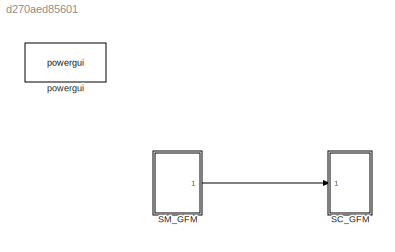
MODEL slx_d270aed85601
KIND model
CONFIG AbsTol = auto
CONFIG EnableMultiTasking = off
CONFIG FixedStep = 0.0001
CONFIG MaxStep = auto
CONFIG MinStep = auto
CONFIG RelTol = 1e-3
CONFIG SampleTimeConstraint = Unconstrained
CONFIG SolverName = ode8
CONFIG StartTime = 0.0
CONFIG StopTime = 5
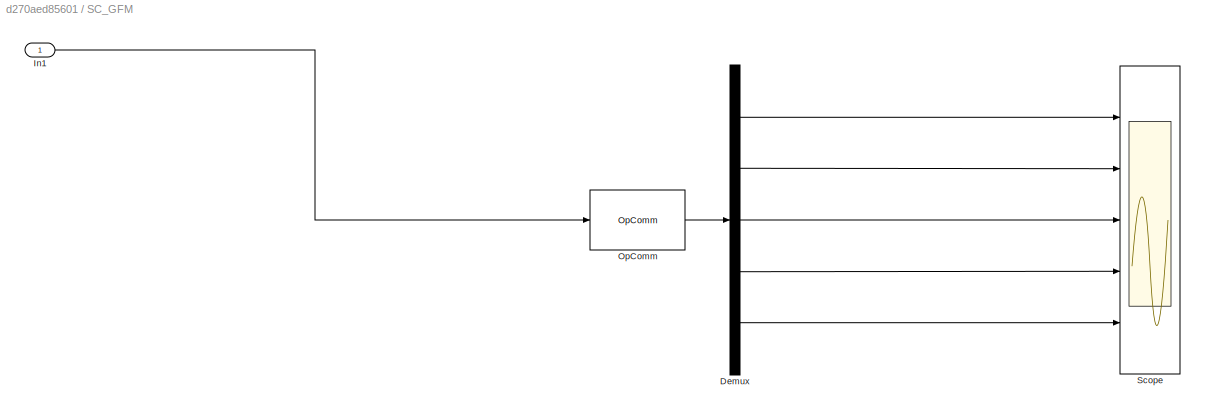
BLOCK [SubSystem] SC_GFM
  Ports = [1]
  RequestExecContextInheritance = off
BLOCK [Demux] SC_GFM/Demux
  Outputs = 5
  Ports = [1, 5]
BLOCK [Inport] SC_GFM/In1
BLOCK [Reference] SC_GFM/OpComm  REF=rtlab/OpComm
  Ports = [1, 1]
  SourceBlock = rtlab/OpComm
  SourceProductName = RT-LAB
  SourceType = RT-LAB OpComm
BLOCK [Scope] SC_GFM/Scope
  Floating = off
  NumInputPorts = 5
  Ports = [5]
  ScopeSpecificationString = Simulink.scopes.TimeScopeBlockCfg('CurrentConfiguration', extmgr.ConfigurationSet(extmgr.Configuration('Core','General UI',true),extmgr.Configuration('Core','Source UI',true),extmgr.Configuration('Sources','WiredSimulink',true,'DataLoggingVariableName','ScopeData2'),extmgr.Configuration('Visuals','Time Domain',true,'SerializedDisplays',{struct('MinYLimReal','-828.46441','MaxYLimReal','765.11252','...<+1471ch>
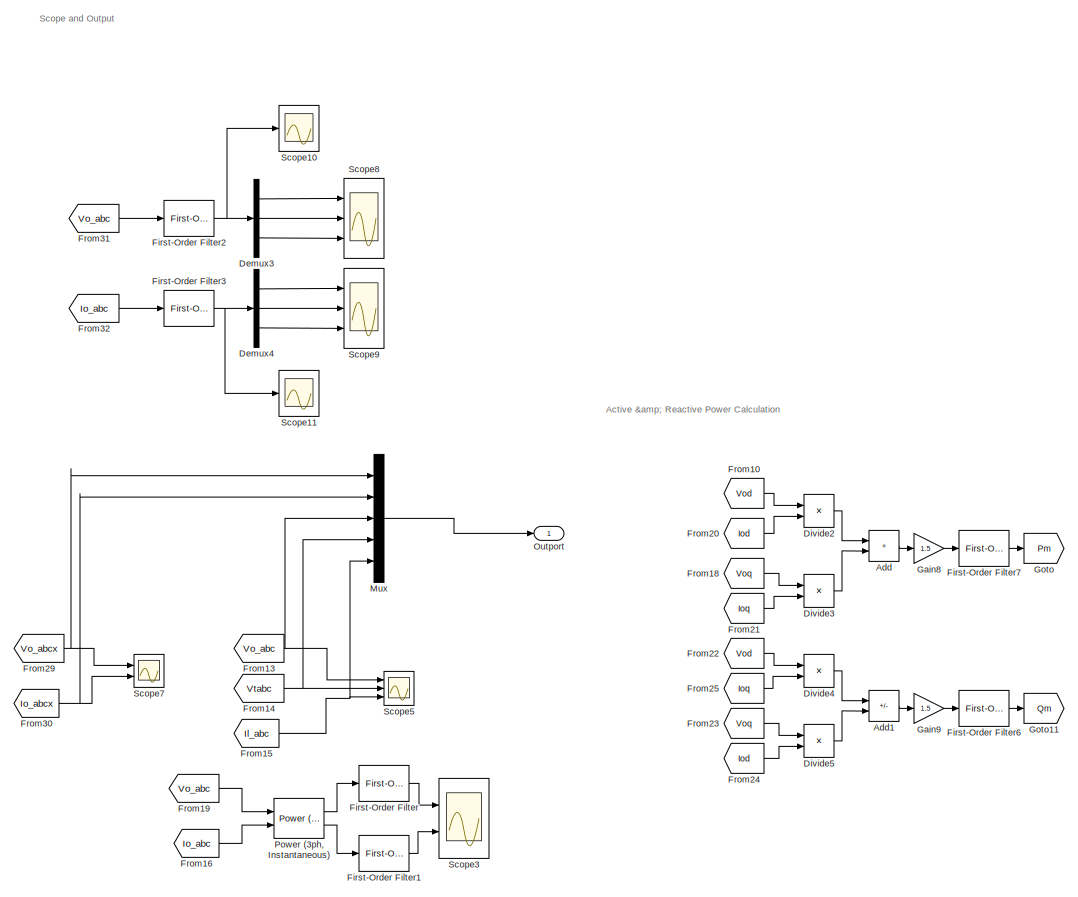
[diagram: SM_GFM - part 1/6, top right region]
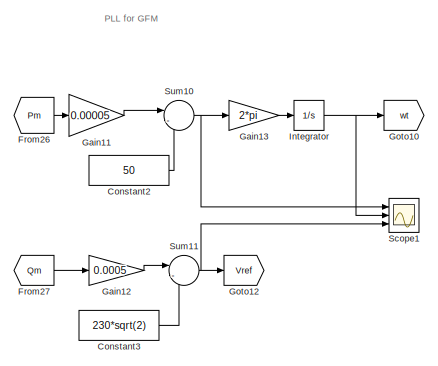
[diagram: SM_GFM - part 2/6, top left region]
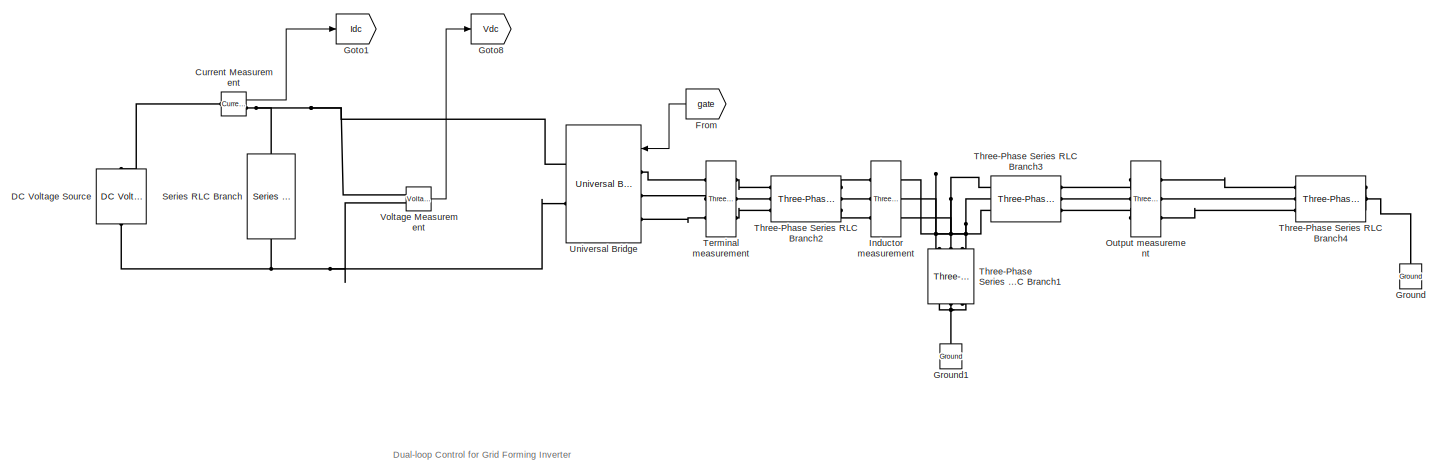
[diagram: SM_GFM - part 3/6, middle left region]
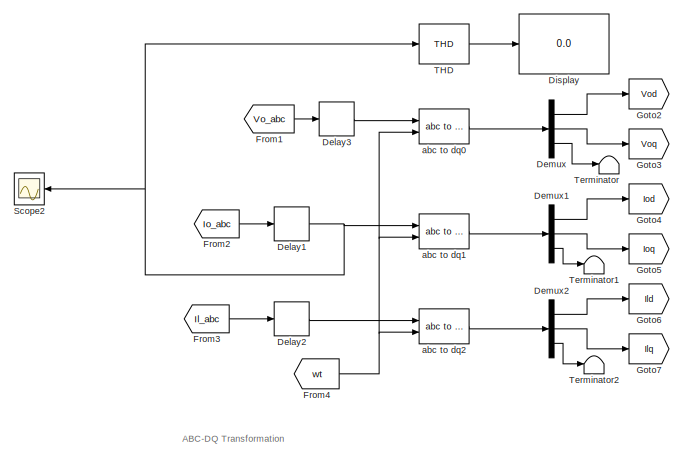
[diagram: SM_GFM - part 4/6, bottom right region]
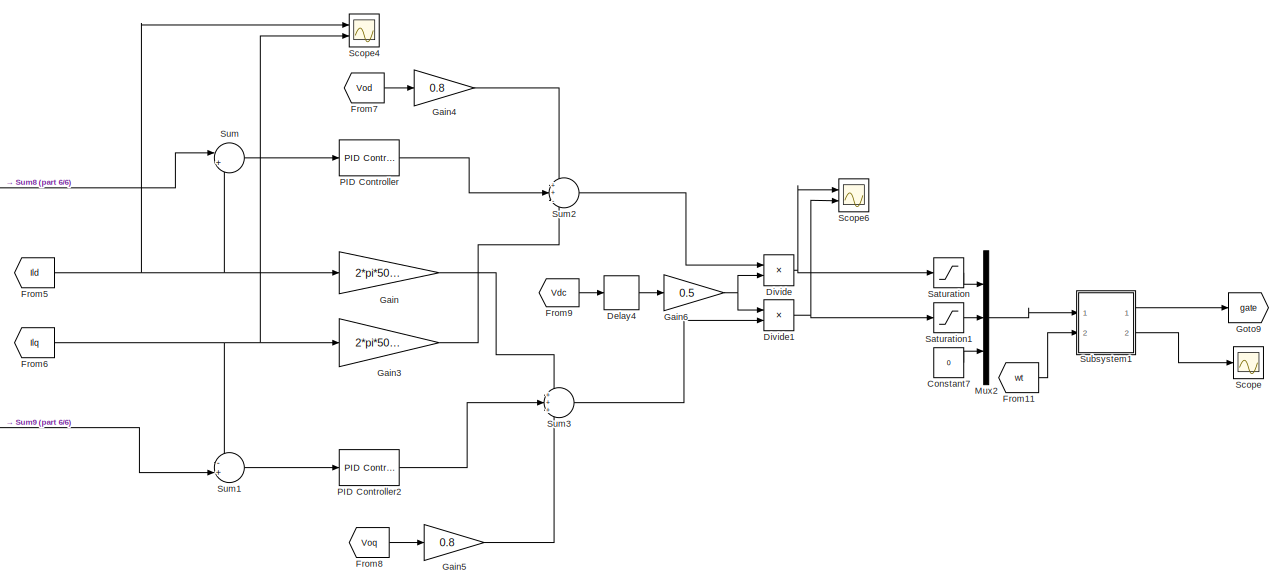
[diagram: SM_GFM - part 5/6, bottom center region]
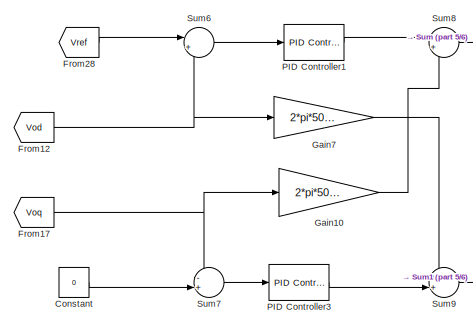
[diagram: SM_GFM - part 6/6, bottom left region]
BLOCK [SubSystem] SM_GFM
  Ports = [0, 1]
  RequestExecContextInheritance = off
BLOCK [Sum] SM_GFM/Add
  IconShape = rectangular
  Ports = [2, 1]
BLOCK [Sum] SM_GFM/Add1
  IconShape = rectangular
  Inputs = +-
  Ports = [2, 1]
BLOCK [Constant] SM_GFM/Constant
  Value = 0
BLOCK [Constant] SM_GFM/Constant2
  Value = 50
BLOCK [Constant] SM_GFM/Constant3
  Value = 230*sqrt(2)
BLOCK [Constant] SM_GFM/Constant7
  Value = 0
BLOCK [Reference] SM_GFM/Current Measurement  REF=spsCurrentMeasurementLib/Current Measurement
  Ports = [0, 1, 0, 0, 0, 1, 1]
  SourceBlock = spsCurrentMeasurementLib/Current Measurement
  SourceProductBaseCode = PS
  SourceType = Current Measurement
  UserDataPersistent = on
BLOCK [Reference] SM_GFM/DC Voltage Source  REF=spsDCVoltageSourceLib/DC Voltage Source
  NameLocation = right
  Ports = [0, 0, 0, 0, 0, 1, 1]
  SourceBlock = spsDCVoltageSourceLib/DC Voltage Source
  SourceProductBaseCode = PS
  SourceType = DC Voltage Source
BLOCK [Delay] SM_GFM/Delay1
  DelayLength = 1
  InputPortMap = u0
  Ports = [1, 1]
BLOCK [Delay] SM_GFM/Delay2
  DelayLength = 1
  InputPortMap = u0
  Ports = [1, 1]
BLOCK [Delay] SM_GFM/Delay3
  DelayLength = 1
  InputPortMap = u0
  Ports = [1, 1]
BLOCK [Delay] SM_GFM/Delay4
  DelayLength = 1
  InputPortMap = u0
  Ports = [1, 1]
BLOCK [Demux] SM_GFM/Demux
  Outputs = 3
  Ports = [1, 3]
BLOCK [Demux] SM_GFM/Demux1
  Outputs = 3
  Ports = [1, 3]
BLOCK [Demux] SM_GFM/Demux2
  Outputs = 3
  Ports = [1, 3]
BLOCK [Demux] SM_GFM/Demux3
  Outputs = 3
  Ports = [1, 3]
BLOCK [Demux] SM_GFM/Demux4
  Outputs = 3
  Ports = [1, 3]
BLOCK [Display] SM_GFM/Display
  Decimation = 1
  Ports = [1]
BLOCK [Product] SM_GFM/Divide
  Inputs = */
  Ports = [2, 1]
BLOCK [Product] SM_GFM/Divide1
  Inputs = /*
  Ports = [2, 1]
BLOCK [Product] SM_GFM/Divide2
  Inputs = **
  Ports = [2, 1]
BLOCK [Product] SM_GFM/Divide3
  Inputs = **
  Ports = [2, 1]
BLOCK [Product] SM_GFM/Divide4
  Inputs = **
  Ports = [2, 1]
BLOCK [Product] SM_GFM/Divide5
  Inputs = **
  Ports = [2, 1]
BLOCK [Reference] SM_GFM/First-Order Filter  REF=spsFirstOrderFilterLib/First-Order
Filter
  Ports = [1, 1]
  SourceBlock = spsFirstOrderFilterLib/First-Order\nFilter
  SourceProductBaseCode = PS
  SourceType = First-Order Filter
BLOCK [Reference] SM_GFM/First-Order Filter1  REF=spsFirstOrderFilterLib/First-Order
Filter
  Ports = [1, 1]
  SourceBlock = spsFirstOrderFilterLib/First-Order\nFilter
  SourceProductBaseCode = PS
  SourceType = First-Order Filter
BLOCK [Reference] SM_GFM/First-Order Filter2  REF=spsFirstOrderFilterLib/First-Order
Filter
  Ports = [1, 1]
  SourceBlock = spsFirstOrderFilterLib/First-Order\nFilter
  SourceProductBaseCode = PS
  SourceType = First-Order Filter
BLOCK [Reference] SM_GFM/First-Order Filter3  REF=spsFirstOrderFilterLib/First-Order
Filter
  Ports = [1, 1]
  SourceBlock = spsFirstOrderFilterLib/First-Order\nFilter
  SourceProductBaseCode = PS
  SourceType = First-Order Filter
BLOCK [Reference] SM_GFM/First-Order Filter6  REF=spsFirstOrderFilterLib/First-Order
Filter
  Ports = [1, 1]
  SourceBlock = spsFirstOrderFilterLib/First-Order\nFilter
  SourceProductBaseCode = PS
  SourceType = First-Order Filter
BLOCK [Reference] SM_GFM/First-Order Filter7  REF=spsFirstOrderFilterLib/First-Order
Filter
  Ports = [1, 1]
  SourceBlock = spsFirstOrderFilterLib/First-Order\nFilter
  SourceProductBaseCode = PS
  SourceType = First-Order Filter
BLOCK [From] SM_GFM/From
  GotoTag = gate
BLOCK [From] SM_GFM/From1
  GotoTag = Vo_abc
  TagVisibility = global
BLOCK [From] SM_GFM/From10
  GotoTag = Vod
BLOCK [From] SM_GFM/From11
  GotoTag = wt
BLOCK [From] SM_GFM/From12
  GotoTag = Vod
BLOCK [From] SM_GFM/From13
  GotoTag = Vo_abc
  TagVisibility = global
BLOCK [From] SM_GFM/From14
  GotoTag = Vtabc
  TagVisibility = global
BLOCK [From] SM_GFM/From15
  GotoTag = Il_abc
  TagVisibility = global
BLOCK [From] SM_GFM/From16
  GotoTag = Io_abc
  TagVisibility = global
BLOCK [From] SM_GFM/From17
  GotoTag = Voq
BLOCK [From] SM_GFM/From18
  GotoTag = Voq
BLOCK [From] SM_GFM/From19
  GotoTag = Vo_abc
  TagVisibility = global
BLOCK [From] SM_GFM/From2
  GotoTag = Io_abc
  TagVisibility = global
BLOCK [From] SM_GFM/From20
  GotoTag = Iod
BLOCK [From] SM_GFM/From21
  GotoTag = Ioq
BLOCK [From] SM_GFM/From22
  GotoTag = Vod
BLOCK [From] SM_GFM/From23
  GotoTag = Voq
BLOCK [From] SM_GFM/From24
  GotoTag = Iod
BLOCK [From] SM_GFM/From25
  GotoTag = Ioq
BLOCK [From] SM_GFM/From26
  GotoTag = Pm
BLOCK [From] SM_GFM/From27
  GotoTag = Qm
BLOCK [From] SM_GFM/From28
  GotoTag = Vref
BLOCK [From] SM_GFM/From29
  GotoTag = Vo_abcx
BLOCK [From] SM_GFM/From3
  GotoTag = Il_abc
  TagVisibility = global
BLOCK [From] SM_GFM/From30
  GotoTag = Io_abcx
BLOCK [From] SM_GFM/From31
  GotoTag = Vo_abc
  TagVisibility = global
BLOCK [From] SM_GFM/From32
  GotoTag = Io_abc
  TagVisibility = global
BLOCK [From] SM_GFM/From4
  GotoTag = wt
BLOCK [From] SM_GFM/From5
  GotoTag = Ild
BLOCK [From] SM_GFM/From6
  GotoTag = Ilq
BLOCK [From] SM_GFM/From7
  GotoTag = Vod
BLOCK [From] SM_GFM/From8
  GotoTag = Voq
BLOCK [From] SM_GFM/From9
  GotoTag = Vdc
BLOCK [Gain] SM_GFM/Gain
  Gain = 2*pi*50*1e-3
BLOCK [Gain] SM_GFM/Gain10
  Gain = 2*pi*50*50e-6
BLOCK [Gain] SM_GFM/Gain11
  Gain = 0.00005
BLOCK [Gain] SM_GFM/Gain12
  Gain = 0.0005
BLOCK [Gain] SM_GFM/Gain13
  Gain = 2*pi
BLOCK [Gain] SM_GFM/Gain3
  Gain = 2*pi*50*1e-3
BLOCK [Gain] SM_GFM/Gain4
  Gain = 0.8
BLOCK [Gain] SM_GFM/Gain5
  Gain = 0.8
BLOCK [Gain] SM_GFM/Gain6
  Gain = 0.5
BLOCK [Gain] SM_GFM/Gain7
  Gain = 2*pi*50*50e-6
BLOCK [Gain] SM_GFM/Gain8
  Gain = 1.5
BLOCK [Gain] SM_GFM/Gain9
  Gain = 1.5
BLOCK [Goto] SM_GFM/Goto
  GotoTag = Pm
BLOCK [Goto] SM_GFM/Goto1
  GotoTag = Idc
BLOCK [Goto] SM_GFM/Goto10
  GotoTag = wt
BLOCK [Goto] SM_GFM/Goto11
  GotoTag = Qm
BLOCK [Goto] SM_GFM/Goto12
  GotoTag = Vref
BLOCK [Goto] SM_GFM/Goto2
  GotoTag = Vod
BLOCK [Goto] SM_GFM/Goto3
  GotoTag = Voq
BLOCK [Goto] SM_GFM/Goto4
  GotoTag = Iod
BLOCK [Goto] SM_GFM/Goto5
  GotoTag = Ioq
BLOCK [Goto] SM_GFM/Goto6
  GotoTag = Ild
BLOCK [Goto] SM_GFM/Goto7
  GotoTag = Ilq
BLOCK [Goto] SM_GFM/Goto8
  GotoTag = Vdc
BLOCK [Goto] SM_GFM/Goto9
  GotoTag = gate
BLOCK [Reference] SM_GFM/Ground  REF=spsGroundLib/Ground
  NameLocation = right
  Ports = [0, 0, 0, 0, 0, 1]
  SourceBlock = spsGroundLib/Ground
  SourceProductBaseCode = PS
  SourceType = Ground
BLOCK [Reference] SM_GFM/Ground1  REF=spsGroundLib/Ground
  NameLocation = right
  Ports = [0, 0, 0, 0, 0, 1]
  SourceBlock = spsGroundLib/Ground
  SourceProductBaseCode = PS
  SourceType = Ground
BLOCK [Reference] SM_GFM/Inductor measurement  REF=spsThreePhaseVIMeasurementLib/Three-Phase
V-I Measurement
  Ports = [0, 0, 0, 0, 0, 3, 3]
  SourceBlock = spsThreePhaseVIMeasurementLib/Three-Phase\nV-I Measurement
  SourceProductBaseCode = PS
  SourceType = Three-Phase VI Measurement
BLOCK [Integrator] SM_GFM/Integrator
  Ports = [1, 1]
  WrapState = on
  WrappedStateLowerValue = 0
  WrappedStateUpperValue = 2*pi
BLOCK [Mux] SM_GFM/Mux
  DisplayOption = bar
  Inputs = 5
  Ports = [5, 1]
BLOCK [Mux] SM_GFM/Mux2
  DisplayOption = bar
  Inputs = 3
  Ports = [3, 1]
BLOCK [Outport] SM_GFM/Outport
  VectorParamsAs1DForOutWhenUnconnected = off
BLOCK [Reference] SM_GFM/Output measurement  REF=spsThreePhaseVIMeasurementLib/Three-Phase
V-I Measurement
  Ports = [0, 0, 0, 0, 0, 3, 3]
  SourceBlock = spsThreePhaseVIMeasurementLib/Three-Phase\nV-I Measurement
  SourceProductBaseCode = PS
  SourceType = Three-Phase VI Measurement
BLOCK [Reference] SM_GFM/PID Controller  REF=slpidlib/PID Controller
  Ports = [1, 1]
  SourceBlock = slpidlib/PID Controller
  SourceProductBaseCode = SL
  SourceType = PID 1dof
BLOCK [Reference] SM_GFM/PID Controller1  REF=slpidlib/PID Controller
  Ports = [1, 1]
  SourceBlock = slpidlib/PID Controller
  SourceProductBaseCode = SL
  SourceType = PID 1dof
BLOCK [Reference] SM_GFM/PID Controller2  REF=slpidlib/PID Controller
  Ports = [1, 1]
  SourceBlock = slpidlib/PID Controller
  SourceProductBaseCode = SL
  SourceType = PID 1dof
BLOCK [Reference] SM_GFM/PID Controller3  REF=slpidlib/PID Controller
  Ports = [1, 1]
  SourceBlock = slpidlib/PID Controller
  SourceProductBaseCode = SL
  SourceType = PID 1dof
BLOCK [Reference] SM_GFM/Power (3ph, Instantaneous)  REF=spsPower3phInstantaneousLib/Power
(3ph, Instantaneous)
  Ports = [2, 2]
  SourceBlock = spsPower3phInstantaneousLib/Power\n(3ph, Instantaneous)
  SourceProductBaseCode = PS
  SourceType = Power (3ph, Instantaneous)
BLOCK [Saturate] SM_GFM/Saturation
  LowerLimit = -1
  UpperLimit = 1
BLOCK [Saturate] SM_GFM/Saturation1
  LowerLimit = -1
  UpperLimit = 1
BLOCK [Scope] SM_GFM/Scope
  Floating = off
  NumInputPorts = 1
  Ports = [1]
  ScopeSpecificationString = Simulink.scopes.TimeScopeBlockCfg('CurrentConfiguration', extmgr.ConfigurationSet(extmgr.Configuration('Core','General UI',true),extmgr.Configuration('Core','Source UI',true),extmgr.Configuration('Sources','WiredSimulink',true,'DataLoggingVariableName','ScopeData3'),extmgr.Configuration('Visuals','Time Domain',true),extmgr.Configuration('Tools','Plot Navigation',true),extmgr.Configuration('Tools',...<+40ch>
BLOCK [Scope] SM_GFM/Scope1
  Floating = off
  NumInputPorts = 3
  Ports = [3]
  ScopeSpecificationString = Simulink.scopes.TimeScopeBlockCfg('CurrentConfiguration', extmgr.ConfigurationSet(extmgr.Configuration('Core','General UI',true),extmgr.Configuration('Core','Source UI',true),extmgr.Configuration('Sources','WiredSimulink',true,'DataLoggingVariableName','ScopeData1'),extmgr.Configuration('Visuals','Time Domain',true,'SerializedDisplays',{struct('MinYLimReal','49.58539','MaxYLimReal','50.04607','YLa...<+2775ch>
BLOCK [Scope] SM_GFM/Scope10
  Floating = off
  NumInputPorts = 1
  Ports = [1]
  ScopeSpecificationString = Simulink.scopes.TimeScopeBlockCfg('CurrentConfiguration', extmgr.ConfigurationSet(extmgr.Configuration('Core','General UI',true,'FigureColor',[1 1 1]),extmgr.Configuration('Core','Source UI',true),extmgr.Configuration('Sources','WiredSimulink',true,'DataLoggingVariableName','ScopeData3'),extmgr.Configuration('Visuals','Time Domain',true,'SerializedDisplays',{struct('MinYLimReal','-65.83876','MaxYL...<+2529ch>
BLOCK [Scope] SM_GFM/Scope11
  Floating = off
  NumInputPorts = 1
  Ports = [1]
  ScopeSpecificationString = Simulink.scopes.TimeScopeBlockCfg('CurrentConfiguration', extmgr.ConfigurationSet(extmgr.Configuration('Core','General UI',true,'FigureColor',[1 1 1]),extmgr.Configuration('Core','Source UI',true),extmgr.Configuration('Sources','WiredSimulink',true,'DataLoggingVariableName','ScopeData4'),extmgr.Configuration('Visuals','Time Domain',true,'SerializedDisplays',{struct('MinYLimReal','-3.29194','MaxYLi...<+2523ch>
BLOCK [Scope] SM_GFM/Scope2
  Floating = off
  NameLocation = top
  NumInputPorts = 1
  Ports = [1]
  ScopeSpecificationString = Simulink.scopes.TimeScopeBlockCfg('CurrentConfiguration', extmgr.ConfigurationSet(extmgr.Configuration('Core','General UI',true),extmgr.Configuration('Core','Source UI',true),extmgr.Configuration('Sources','WiredSimulink',true,'DataLoggingVariableName','ScopeData3','DataLogging',true),extmgr.Configuration('Visuals','Time Domain',true,'SerializedDisplays',{struct('MinYLimReal','-20.87194','MaxYLimR...<+1583ch>
BLOCK [Scope] SM_GFM/Scope3
  Floating = off
  NumInputPorts = 2
  Ports = [2]
  ScopeSpecificationString = Simulink.scopes.TimeScopeBlockCfg('CurrentConfiguration', extmgr.ConfigurationSet(extmgr.Configuration('Core','General UI',true,'FigureColor',[1 1 1]),extmgr.Configuration('Core','Source UI',true),extmgr.Configuration('Sources','WiredSimulink',true,'DataLoggingVariableName','ScopeData4'),extmgr.Configuration('Visuals','Time Domain',true,'SerializedDisplays',{struct('MinYLimReal','-1322.29788','Max...<+1869ch>
BLOCK [Scope] SM_GFM/Scope4
  Floating = off
  NumInputPorts = 2
  Ports = [2]
  ScopeSpecificationString = Simulink.scopes.TimeScopeBlockCfg('CurrentConfiguration', extmgr.ConfigurationSet(extmgr.Configuration('Core','General UI',true),extmgr.Configuration('Core','Source UI',true),extmgr.Configuration('Sources','WiredSimulink',true,'DataLoggingVariableName','ScopeData5'),extmgr.Configuration('Visuals','Time Domain',true,'SerializedDisplays',{struct('MinYLimReal','-25.31564','MaxYLimReal','32.36395','YL...<+2089ch>
BLOCK [Scope] SM_GFM/Scope5
  Floating = off
  NumInputPorts = 3
  Ports = [3]
  ScopeSpecificationString = Simulink.scopes.TimeScopeBlockCfg('CurrentConfiguration', extmgr.ConfigurationSet(extmgr.Configuration('Core','General UI',true),extmgr.Configuration('Core','Source UI',true),extmgr.Configuration('Sources','WiredSimulink',true,'DataLoggingVariableName','ScopeData6'),extmgr.Configuration('Visuals','Time Domain',true,'SerializedDisplays',{struct('MinYLimReal','-34.3785','MaxYLimReal','39.87886','YLa...<+1836ch>
BLOCK [Scope] SM_GFM/Scope6
  Floating = off
  NumInputPorts = 2
  Ports = [2]
  ScopeSpecificationString = Simulink.scopes.TimeScopeBlockCfg('CurrentConfiguration', extmgr.ConfigurationSet(extmgr.Configuration('Core','General UI',true),extmgr.Configuration('Core','Source UI',true),extmgr.Configuration('Sources','WiredSimulink',true,'DataLoggingVariableName','ScopeData7'),extmgr.Configuration('Visuals','Time Domain',true,'SerializedDisplays',{struct('MinYLimReal','-0.21607','MaxYLimReal','1.04724','YLab...<+1421ch>
BLOCK [Scope] SM_GFM/Scope7
  Floating = off
  NumInputPorts = 2
  Ports = [2]
  ScopeSpecificationString = Simulink.scopes.TimeScopeBlockCfg('CurrentConfiguration', extmgr.ConfigurationSet(extmgr.Configuration('Core','General UI',true),extmgr.Configuration('Core','Source UI',true),extmgr.Configuration('Sources','WiredSimulink',true,'DataLoggingVariableName','ScopeData1'),extmgr.Configuration('Visuals','Time Domain',true,'SerializedDisplays',{struct('MinYLimReal','-420.69816','MaxYLimReal','421.65488','...<+1546ch>
BLOCK [Scope] SM_GFM/Scope8
  Floating = off
  NumInputPorts = 3
  Ports = [3]
  ScopeSpecificationString = Simulink.scopes.TimeScopeBlockCfg('CurrentConfiguration', extmgr.ConfigurationSet(extmgr.Configuration('Core','General UI',true,'FigureColor',[1 1 1]),extmgr.Configuration('Core','Source UI',true),extmgr.Configuration('Sources','WiredSimulink',true,'DataLoggingVariableName','ScopeData1'),extmgr.Configuration('Visuals','Time Domain',true,'SerializedDisplays',{struct('MinYLimReal','-59.9055','MaxYLi...<+4059ch>
BLOCK [Scope] SM_GFM/Scope9
  Floating = off
  NumInputPorts = 3
  Ports = [3]
  ScopeSpecificationString = Simulink.scopes.TimeScopeBlockCfg('CurrentConfiguration', extmgr.ConfigurationSet(extmgr.Configuration('Core','General UI',true,'FigureColor',[1 1 1]),extmgr.Configuration('Core','Source UI',true),extmgr.Configuration('Sources','WiredSimulink',true,'DataLoggingVariableName','ScopeData2'),extmgr.Configuration('Visuals','Time Domain',true,'SerializedDisplays',{struct('MinYLimReal','-2.99528','MaxYLi...<+4054ch>
BLOCK [Reference] SM_GFM/Series RLC Branch  REF=spsSeriesRLCBranchLib/Series RLC Branch
  NameLocation = left
  Ports = [0, 0, 0, 0, 0, 1, 1]
  SourceBlock = spsSeriesRLCBranchLib/Series RLC Branch
  SourceProductBaseCode = PS
  SourceType = Series RLC Branch
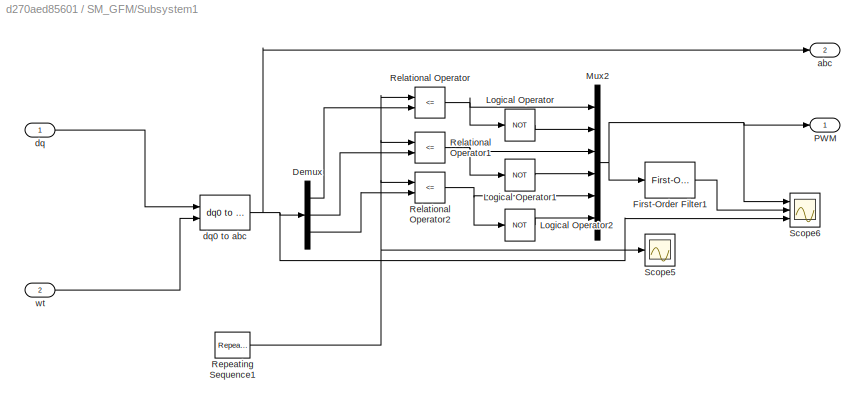
BLOCK [SubSystem] SM_GFM/Subsystem1
  Ports = [2, 2]
  RequestExecContextInheritance = off
BLOCK [Demux] SM_GFM/Subsystem1/Demux
  Outputs = 3
  Ports = [1, 3]
BLOCK [Reference] SM_GFM/Subsystem1/First-Order Filter1  REF=spsFirstOrderFilterLib/First-Order
Filter
  Ports = [1, 1]
  SourceBlock = spsFirstOrderFilterLib/First-Order\nFilter
  SourceProductBaseCode = PS
  SourceType = First-Order Filter
BLOCK [Logic] SM_GFM/Subsystem1/Logical Operator
  AllPortsSameDT = off
  Operator = NOT
  OutDataTypeStr = boolean
  Ports = [1, 1]
BLOCK [Logic] SM_GFM/Subsystem1/Logical Operator1
  AllPortsSameDT = off
  Operator = NOT
  OutDataTypeStr = boolean
  Ports = [1, 1]
BLOCK [Logic] SM_GFM/Subsystem1/Logical Operator2
  AllPortsSameDT = off
  Operator = NOT
  OutDataTypeStr = boolean
  Ports = [1, 1]
BLOCK [Mux] SM_GFM/Subsystem1/Mux2
  DisplayOption = bar
  Inputs = 6
  Ports = [6, 1]
BLOCK [Outport] SM_GFM/Subsystem1/PWM
  VectorParamsAs1DForOutWhenUnconnected = off
BLOCK [RelationalOperator] SM_GFM/Subsystem1/Relational Operator
  InputSameDT = off
  Operator = <=
  OutDataTypeStr = boolean
  Ports = [2, 1]
  RndMeth = Simplest
BLOCK [RelationalOperator] SM_GFM/Subsystem1/Relational Operator1
  InputSameDT = off
  Operator = <=
  OutDataTypeStr = boolean
  Ports = [2, 1]
  RndMeth = Simplest
BLOCK [RelationalOperator] SM_GFM/Subsystem1/Relational Operator2
  InputSameDT = off
  Operator = <=
  OutDataTypeStr = boolean
  Ports = [2, 1]
  RndMeth = Simplest
BLOCK [Reference] SM_GFM/Subsystem1/Repeating Sequence1  REF=simulink/Sources/Repeating
Sequence
  Ports = [0, 1]
  SourceBlock = simulink/Sources/Repeating\nSequence
  SourceProductBaseCode = SL
  SourceType = Repeating table
BLOCK [Scope] SM_GFM/Subsystem1/Scope5
  Floating = off
  NumInputPorts = 1
  Ports = [1]
  ScopeSpecificationString = Simulink.scopes.TimeScopeBlockCfg('CurrentConfiguration', extmgr.ConfigurationSet(extmgr.Configuration('Core','General UI',true),extmgr.Configuration('Core','Source UI',true),extmgr.Configuration('Sources','WiredSimulink',true,'DataLoggingVariableName','ScopeData3'),extmgr.Configuration('Visuals','Time Domain',true,'SerializedDisplays',{struct('MinYLimReal','-1.25','MaxYLimReal','1.25','YLabelReal...<+1406ch>
BLOCK [Scope] SM_GFM/Subsystem1/Scope6
  Floating = off
  NumInputPorts = 3
  Ports = [3]
  ScopeSpecificationString = Simulink.scopes.TimeScopeBlockCfg('CurrentConfiguration', extmgr.ConfigurationSet(extmgr.Configuration('Core','General UI',true),extmgr.Configuration('Core','Source UI',true),extmgr.Configuration('Sources','WiredSimulink',true,'DataLoggingVariableName','ScopeData4'),extmgr.Configuration('Visuals','Time Domain',true,'SerializedDisplays',{struct('MinYLimReal','-0.8','MaxYLimReal','1.2','YLabelReal',...<+2151ch>
BLOCK [Outport] SM_GFM/Subsystem1/abc
  Port = 2
  VectorParamsAs1DForOutWhenUnconnected = off
BLOCK [Inport] SM_GFM/Subsystem1/dq
BLOCK [Reference] SM_GFM/Subsystem1/dq0 to abc  REF=spsdq0toabcLib/dq0 to abc
  Ports = [2, 1]
  SourceBlock = spsdq0toabcLib/dq0 to abc
  SourceProductBaseCode = PS
  SourceType = dq0 to abc Transformation
BLOCK [Inport] SM_GFM/Subsystem1/wt
  Port = 2
BLOCK [Sum] SM_GFM/Sum
  Inputs = |+-
  Ports = [2, 1]
BLOCK [Sum] SM_GFM/Sum1
  Inputs = -+|
  Ports = [2, 1]
BLOCK [Sum] SM_GFM/Sum10
  Inputs = |-+
  Ports = [2, 1]
BLOCK [Sum] SM_GFM/Sum11
  Inputs = |-+
  Ports = [2, 1]
BLOCK [Sum] SM_GFM/Sum2
  Inputs = ++-
  Ports = [3, 1]
BLOCK [Sum] SM_GFM/Sum3
  Inputs = +++
  Ports = [3, 1]
BLOCK [Sum] SM_GFM/Sum6
  Inputs = |+-
  Ports = [2, 1]
BLOCK [Sum] SM_GFM/Sum7
  Inputs = -+|
  Ports = [2, 1]
BLOCK [Sum] SM_GFM/Sum8
  Inputs = |+-
  Ports = [2, 1]
BLOCK [Sum] SM_GFM/Sum9
  Inputs = ++|
  Ports = [2, 1]
BLOCK [Reference] SM_GFM/THD  REF=spsTHDLib/THD
  Ports = [1, 1]
  SourceBlock = spsTHDLib/THD
  SourceProductBaseCode = PS
  SourceType = THD
BLOCK [Reference] SM_GFM/Terminal measurement  REF=spsThreePhaseVIMeasurementLib/Three-Phase
V-I Measurement
  Ports = [0, 0, 0, 0, 0, 3, 3]
  SourceBlock = spsThreePhaseVIMeasurementLib/Three-Phase\nV-I Measurement
  SourceProductBaseCode = PS
  SourceType = Three-Phase VI Measurement
BLOCK [Terminator] SM_GFM/Terminator
BLOCK [Terminator] SM_GFM/Terminator1
BLOCK [Terminator] SM_GFM/Terminator2
BLOCK [Reference] SM_GFM/Three-Phase Series RLC Branch1  REF=spsThreePhaseSeriesRLCBranchLib/Three-Phase
Series RLC Branch
  AttributesFormatString = \n
  NameLocation = left
  Ports = [0, 0, 0, 0, 0, 3, 3]
  SourceBlock = spsThreePhaseSeriesRLCBranchLib/Three-Phase\nSeries RLC Branch
  SourceProductBaseCode = PS
  SourceType = Three-Phase Series RLC Branch
BLOCK [Reference] SM_GFM/Three-Phase Series RLC Branch2  REF=spsThreePhaseSeriesRLCBranchLib/Three-Phase
Series RLC Branch
  AttributesFormatString = \n
  Ports = [0, 0, 0, 0, 0, 3, 3]
  SourceBlock = spsThreePhaseSeriesRLCBranchLib/Three-Phase\nSeries RLC Branch
  SourceProductBaseCode = PS
  SourceType = Three-Phase Series RLC Branch
BLOCK [Reference] SM_GFM/Three-Phase Series RLC Branch3  REF=spsThreePhaseSeriesRLCBranchLib/Three-Phase
Series RLC Branch
  AttributesFormatString = \n
  Ports = [0, 0, 0, 0, 0, 3, 3]
  SourceBlock = spsThreePhaseSeriesRLCBranchLib/Three-Phase\nSeries RLC Branch
  SourceProductBaseCode = PS
  SourceType = Three-Phase Series RLC Branch
BLOCK [Reference] SM_GFM/Three-Phase Series RLC Branch4  REF=spsThreePhaseSeriesRLCBranchLib/Three-Phase
Series RLC Branch
  AttributesFormatString = \n
  Ports = [0, 0, 0, 0, 0, 3, 3]
  SourceBlock = spsThreePhaseSeriesRLCBranchLib/Three-Phase\nSeries RLC Branch
  SourceProductBaseCode = PS
  SourceType = Three-Phase Series RLC Branch
BLOCK [Reference] SM_GFM/Universal Bridge  REF=spsUniversalBridgeLib/Universal Bridge
  Ports = [1, 0, 0, 0, 0, 3, 2]
  SourceBlock = spsUniversalBridgeLib/Universal Bridge
  SourceProductBaseCode = PS
  SourceType = Universal Bridge
BLOCK [Reference] SM_GFM/Voltage Measurement  REF=spsVoltageMeasurementLib/Voltage Measurement
  Ports = [0, 1, 0, 0, 0, 2]
  SourceBlock = spsVoltageMeasurementLib/Voltage Measurement
  SourceProductBaseCode = PS
  SourceType = Voltage Measurement
  UserDataPersistent = on
BLOCK [Reference] SM_GFM/abc to dq0  REF=spsabctodq0Lib/abc to dq0
  Ports = [2, 1]
  SourceBlock = spsabctodq0Lib/abc to dq0
  SourceProductBaseCode = PS
  SourceType = abc to dq0 Transformation
BLOCK [Reference] SM_GFM/abc to dq1  REF=spsabctodq0Lib/abc to dq0
  Ports = [2, 1]
  SourceBlock = spsabctodq0Lib/abc to dq0
  SourceProductBaseCode = PS
  SourceType = abc to dq0 Transformation
BLOCK [Reference] SM_GFM/abc to dq2  REF=spsabctodq0Lib/abc to dq0
  Ports = [2, 1]
  SourceBlock = spsabctodq0Lib/abc to dq0
  SourceProductBaseCode = PS
  SourceType = abc to dq0 Transformation
BLOCK [Reference] powergui  REF=spspowerguiLib/powergui
  Ports = []
  Priority = 1
  SourceBlock = spspowerguiLib/powergui
  SourceProductBaseCode = PS
  SourceType = PSB option menu block
ANNOTATION SM_GFM: Active & Reactive Power Calculation
ANNOTATION SM_GFM: PLL for GFM
ANNOTATION SM_GFM: ABC-DQ Transformation
ANNOTATION SM_GFM: Dual-loop Control for Grid Forming Inverter
ANNOTATION SM_GFM: Scope and Output
LINE SC_GFM/Demux:1 -> SC_GFM/Scope:1
LINE SC_GFM/Demux:2 -> SC_GFM/Scope:2
LINE SC_GFM/Demux:3 -> SC_GFM/Scope:3
LINE SC_GFM/Demux:4 -> SC_GFM/Scope:4
LINE SC_GFM/Demux:5 -> SC_GFM/Scope:5
LINE SC_GFM/In1:1 -> SC_GFM/OpComm:1
LINE SC_GFM/OpComm:1 -> SC_GFM/Demux:1
LINE SM_GFM/Add1:1 -> SM_GFM/Gain9:1
LINE SM_GFM/Add:1 -> SM_GFM/Gain8:1
LINE SM_GFM/Constant2:1 -> SM_GFM/Sum10:2
LINE SM_GFM/Constant3:1 -> SM_GFM/Sum11:2
LINE SM_GFM/Constant7:1 -> SM_GFM/Mux2:3
LINE SM_GFM/Constant:1 -> SM_GFM/Sum7:2
LINE SM_GFM/Current Measurement:1 -> SM_GFM/Goto1:1
NET SM_GFM/Delay1:1 -> SM_GFM/Scope2:1, SM_GFM/THD:1, SM_GFM/abc to dq1:1
LINE SM_GFM/Delay2:1 -> SM_GFM/abc to dq2:1
LINE SM_GFM/Delay3:1 -> SM_GFM/abc to dq0:1
LINE SM_GFM/Delay4:1 -> SM_GFM/Gain6:1
LINE SM_GFM/Demux1:1 -> SM_GFM/Goto4:1
LINE SM_GFM/Demux1:2 -> SM_GFM/Goto5:1
LINE SM_GFM/Demux1:3 -> SM_GFM/Terminator1:1
LINE SM_GFM/Demux2:1 -> SM_GFM/Goto6:1
LINE SM_GFM/Demux2:2 -> SM_GFM/Goto7:1
LINE SM_GFM/Demux2:3 -> SM_GFM/Terminator2:1
LINE SM_GFM/Demux3:1 -> SM_GFM/Scope8:1
LINE SM_GFM/Demux3:2 -> SM_GFM/Scope8:2
LINE SM_GFM/Demux3:3 -> SM_GFM/Scope8:3
LINE SM_GFM/Demux4:1 -> SM_GFM/Scope9:1
LINE SM_GFM/Demux4:2 -> SM_GFM/Scope9:2
LINE SM_GFM/Demux4:3 -> SM_GFM/Scope9:3
LINE SM_GFM/Demux:1 -> SM_GFM/Goto2:1
LINE SM_GFM/Demux:2 -> SM_GFM/Goto3:1
LINE SM_GFM/Demux:3 -> SM_GFM/Terminator:1
NET SM_GFM/Divide1:1 -> SM_GFM/Saturation1:1, SM_GFM/Scope6:2
LINE SM_GFM/Divide2:1 -> SM_GFM/Add:1
LINE SM_GFM/Divide3:1 -> SM_GFM/Add:2
LINE SM_GFM/Divide4:1 -> SM_GFM/Add1:1
LINE SM_GFM/Divide5:1 -> SM_GFM/Add1:2
NET SM_GFM/Divide:1 -> SM_GFM/Saturation:1, SM_GFM/Scope6:1
LINE SM_GFM/First-Order Filter1:1 -> SM_GFM/Scope3:2
NET SM_GFM/First-Order Filter2:1 -> SM_GFM/Demux3:1, SM_GFM/Scope10:1
NET SM_GFM/First-Order Filter3:1 -> SM_GFM/Demux4:1, SM_GFM/Scope11:1
LINE SM_GFM/First-Order Filter6:1 -> SM_GFM/Goto11:1
LINE SM_GFM/First-Order Filter7:1 -> SM_GFM/Goto:1
LINE SM_GFM/First-Order Filter:1 -> SM_GFM/Scope3:1
LINE SM_GFM/From10:1 -> SM_GFM/Divide2:1
LINE SM_GFM/From11:1 -> SM_GFM/Subsystem1:2
NET SM_GFM/From12:1 -> SM_GFM/Gain7:1, SM_GFM/Sum6:2
NET SM_GFM/From13:1 -> SM_GFM/Mux:3, SM_GFM/Scope5:1
NET SM_GFM/From14:1 -> SM_GFM/Mux:4, SM_GFM/Scope5:2
NET SM_GFM/From15:1 -> SM_GFM/Mux:5, SM_GFM/Scope5:3
LINE SM_GFM/From16:1 -> SM_GFM/Power (3ph, Instantaneous):2
NET SM_GFM/From17:1 -> SM_GFM/Gain10:1, SM_GFM/Sum7:1
LINE SM_GFM/From18:1 -> SM_GFM/Divide3:1
LINE SM_GFM/From19:1 -> SM_GFM/Power (3ph, Instantaneous):1
LINE SM_GFM/From1:1 -> SM_GFM/Delay3:1
LINE SM_GFM/From20:1 -> SM_GFM/Divide2:2
LINE SM_GFM/From21:1 -> SM_GFM/Divide3:2
LINE SM_GFM/From22:1 -> SM_GFM/Divide4:1
LINE SM_GFM/From23:1 -> SM_GFM/Divide5:1
LINE SM_GFM/From24:1 -> SM_GFM/Divide5:2
LINE SM_GFM/From25:1 -> SM_GFM/Divide4:2
LINE SM_GFM/From26:1 -> SM_GFM/Gain11:1
LINE SM_GFM/From27:1 -> SM_GFM/Gain12:1
LINE SM_GFM/From28:1 -> SM_GFM/Sum6:1
NET SM_GFM/From29:1 -> SM_GFM/Mux:1, SM_GFM/Scope7:1
LINE SM_GFM/From2:1 -> SM_GFM/Delay1:1
NET SM_GFM/From30:1 -> SM_GFM/Mux:2, SM_GFM/Scope7:2
LINE SM_GFM/From31:1 -> SM_GFM/First-Order Filter2:1
LINE SM_GFM/From32:1 -> SM_GFM/First-Order Filter3:1
LINE SM_GFM/From3:1 -> SM_GFM/Delay2:1
NET SM_GFM/From4:1 -> SM_GFM/abc to dq0:2, SM_GFM/abc to dq1:2, SM_GFM/abc to dq2:2
NET SM_GFM/From5:1 -> SM_GFM/Gain:1, SM_GFM/Scope4:1, SM_GFM/Sum:2
NET SM_GFM/From6:1 -> SM_GFM/Gain3:1, SM_GFM/Scope4:2, SM_GFM/Sum1:1
LINE SM_GFM/From7:1 -> SM_GFM/Gain4:1
LINE SM_GFM/From8:1 -> SM_GFM/Gain5:1
LINE SM_GFM/From9:1 -> SM_GFM/Delay4:1
LINE SM_GFM/From:1 -> SM_GFM/Universal Bridge:1
LINE SM_GFM/Gain10:1 -> SM_GFM/Sum8:2
LINE SM_GFM/Gain11:1 -> SM_GFM/Sum10:1
LINE SM_GFM/Gain12:1 -> SM_GFM/Sum11:1
LINE SM_GFM/Gain13:1 -> SM_GFM/Integrator:1
LINE SM_GFM/Gain3:1 -> SM_GFM/Sum2:3
LINE SM_GFM/Gain4:1 -> SM_GFM/Sum2:1
LINE SM_GFM/Gain5:1 -> SM_GFM/Sum3:3
NET SM_GFM/Gain6:1 -> SM_GFM/Divide1:1, SM_GFM/Divide:2
LINE SM_GFM/Gain7:1 -> SM_GFM/Sum9:1
LINE SM_GFM/Gain8:1 -> SM_GFM/First-Order Filter7:1
LINE SM_GFM/Gain9:1 -> SM_GFM/First-Order Filter6:1
LINE SM_GFM/Gain:1 -> SM_GFM/Sum3:1
NET SM_GFM/Integrator:1 -> SM_GFM/Goto10:1, SM_GFM/Scope1:2
LINE SM_GFM/Mux2:1 -> SM_GFM/Subsystem1:1
LINE SM_GFM/Mux:1 -> SM_GFM/Outport:1
LINE SM_GFM/PID Controller1:1 -> SM_GFM/Sum8:1
LINE SM_GFM/PID Controller2:1 -> SM_GFM/Sum3:2
LINE SM_GFM/PID Controller3:1 -> SM_GFM/Sum9:2
LINE SM_GFM/PID Controller:1 -> SM_GFM/Sum2:2
LINE SM_GFM/Power (3ph, Instantaneous):1 -> SM_GFM/First-Order Filter:1
LINE SM_GFM/Power (3ph, Instantaneous):2 -> SM_GFM/First-Order Filter1:1
LINE SM_GFM/Saturation1:1 -> SM_GFM/Mux2:2
LINE SM_GFM/Saturation:1 -> SM_GFM/Mux2:1
LINE SM_GFM/Subsystem1/Demux:1 -> SM_GFM/Subsystem1/Relational Operator:2
LINE SM_GFM/Subsystem1/Demux:2 -> SM_GFM/Subsystem1/Relational Operator1:2
LINE SM_GFM/Subsystem1/Demux:3 -> SM_GFM/Subsystem1/Relational Operator2:2
LINE SM_GFM/Subsystem1/First-Order Filter1:1 -> SM_GFM/Subsystem1/Scope6:2
LINE SM_GFM/Subsystem1/Logical Operator1:1 -> SM_GFM/Subsystem1/Mux2:4
LINE SM_GFM/Subsystem1/Logical Operator2:1 -> SM_GFM/Subsystem1/Mux2:6
LINE SM_GFM/Subsystem1/Logical Operator:1 -> SM_GFM/Subsystem1/Mux2:2
NET SM_GFM/Subsystem1/Mux2:1 -> SM_GFM/Subsystem1/First-Order Filter1:1, SM_GFM/Subsystem1/PWM:1, SM_GFM/Subsystem1/Scope6:1
NET SM_GFM/Subsystem1/Relational Operator1:1 -> SM_GFM/Subsystem1/Logical Operator1:1, SM_GFM/Subsystem1/Mux2:3
NET SM_GFM/Subsystem1/Relational Operator2:1 -> SM_GFM/Subsystem1/Logical Operator2:1, SM_GFM/Subsystem1/Mux2:5
NET SM_GFM/Subsystem1/Relational Operator:1 -> SM_GFM/Subsystem1/Logical Operator:1, SM_GFM/Subsystem1/Mux2:1
NET SM_GFM/Subsystem1/Repeating Sequence1:1 -> SM_GFM/Subsystem1/Relational Operator1:1, SM_GFM/Subsystem1/Relational Operator2:1, SM_GFM/Subsystem1/Relational Operator:1, SM_GFM/Subsystem1/Scope5:1
NET SM_GFM/Subsystem1/dq0 to abc:1 -> SM_GFM/Subsystem1/Demux:1, SM_GFM/Subsystem1/Scope6:3, SM_GFM/Subsystem1/abc:1
LINE SM_GFM/Subsystem1/dq:1 -> SM_GFM/Subsystem1/dq0 to abc:1
LINE SM_GFM/Subsystem1/wt:1 -> SM_GFM/Subsystem1/dq0 to abc:2
LINE SM_GFM/Subsystem1:1 -> SM_GFM/Goto9:1
LINE SM_GFM/Subsystem1:2 -> SM_GFM/Scope:1
NET SM_GFM/Sum10:1 -> SM_GFM/Gain13:1, SM_GFM/Scope1:1
NET SM_GFM/Sum11:1 -> SM_GFM/Goto12:1, SM_GFM/Scope1:3
LINE SM_GFM/Sum1:1 -> SM_GFM/PID Controller2:1
LINE SM_GFM/Sum2:1 -> SM_GFM/Divide:1
LINE SM_GFM/Sum3:1 -> SM_GFM/Divide1:2
LINE SM_GFM/Sum6:1 -> SM_GFM/PID Controller1:1
LINE SM_GFM/Sum7:1 -> SM_GFM/PID Controller3:1
LINE SM_GFM/Sum8:1 -> SM_GFM/Sum:1
LINE SM_GFM/Sum9:1 -> SM_GFM/Sum1:2
LINE SM_GFM/Sum:1 -> SM_GFM/PID Controller:1
LINE SM_GFM/THD:1 -> SM_GFM/Display:1
LINE SM_GFM/Voltage Measurement:1 -> SM_GFM/Goto8:1
LINE SM_GFM/abc to dq0:1 -> SM_GFM/Demux:1
LINE SM_GFM/abc to dq1:1 -> SM_GFM/Demux1:1
LINE SM_GFM/abc to dq2:1 -> SM_GFM/Demux2:1
LINE SM_GFM:1 -> SC_GFM:1
PLINE SM_GFM/Current Measurement:LConn1 -- SM_GFM/DC Voltage Source:RConn1
PNET net1: SM_GFM/Current Measurement:RConn1 -- SM_GFM/Series RLC Branch:LConn1 -- SM_GFM/Universal Bridge:RConn1 -- SM_GFM/Voltage Measurement:LConn1
PNET net2: SM_GFM/DC Voltage Source:LConn1 -- SM_GFM/Series RLC Branch:RConn1 -- SM_GFM/Universal Bridge:RConn2 -- SM_GFM/Voltage Measurement:LConn2
PNET net3: SM_GFM/Ground1:LConn1 -- SM_GFM/Three-Phase Series RLC Branch1:RConn1 -- SM_GFM/Three-Phase Series RLC Branch1:RConn2 -- SM_GFM/Three-Phase Series RLC Branch1:RConn3
PNET net4: SM_GFM/Ground:LConn1 -- SM_GFM/Three-Phase Series RLC Branch4:RConn1 -- SM_GFM/Three-Phase Series RLC Branch4:RConn2 -- SM_GFM/Three-Phase Series RLC Branch4:RConn3
PLINE SM_GFM/Inductor measurement:LConn1 -- SM_GFM/Three-Phase Series RLC Branch2:RConn1
PLINE SM_GFM/Inductor measurement:LConn2 -- SM_GFM/Three-Phase Series RLC Branch2:RConn2
PLINE SM_GFM/Inductor measurement:LConn3 -- SM_GFM/Three-Phase Series RLC Branch2:RConn3
PNET net5: SM_GFM/Inductor measurement:RConn1 -- SM_GFM/Three-Phase Series RLC Branch1:LConn1 -- SM_GFM/Three-Phase Series RLC Branch3:LConn1
PNET net6: SM_GFM/Inductor measurement:RConn2 -- SM_GFM/Three-Phase Series RLC Branch1:LConn2 -- SM_GFM/Three-Phase Series RLC Branch3:LConn2
PNET net7: SM_GFM/Inductor measurement:RConn3 -- SM_GFM/Three-Phase Series RLC Branch1:LConn3 -- SM_GFM/Three-Phase Series RLC Branch3:LConn3
PLINE SM_GFM/Output measurement:LConn1 -- SM_GFM/Three-Phase Series RLC Branch3:RConn1
PLINE SM_GFM/Output measurement:LConn2 -- SM_GFM/Three-Phase Series RLC Branch3:RConn2
PLINE SM_GFM/Output measurement:LConn3 -- SM_GFM/Three-Phase Series RLC Branch3:RConn3
PLINE SM_GFM/Output measurement:RConn1 -- SM_GFM/Three-Phase Series RLC Branch4:LConn1
PLINE SM_GFM/Output measurement:RConn2 -- SM_GFM/Three-Phase Series RLC Branch4:LConn2
PLINE SM_GFM/Output measurement:RConn3 -- SM_GFM/Three-Phase Series RLC Branch4:LConn3
PLINE SM_GFM/Terminal measurement:LConn1 -- SM_GFM/Universal Bridge:LConn1
PLINE SM_GFM/Terminal measurement:LConn2 -- SM_GFM/Universal Bridge:LConn2
PLINE SM_GFM/Terminal measurement:LConn3 -- SM_GFM/Universal Bridge:LConn3
PLINE SM_GFM/Terminal measurement:RConn1 -- SM_GFM/Three-Phase Series RLC Branch2:LConn1
PLINE SM_GFM/Terminal measurement:RConn2 -- SM_GFM/Three-Phase Series RLC Branch2:LConn2
PLINE SM_GFM/Terminal measurement:RConn3 -- SM_GFM/Three-Phase Series RLC Branch2:LConn3
note: NET lines group one-source signal fan-out (src -> all destinations, sorted); 1:1 wires keep LINE; PNET lines group multi-terminal physical nets as a canonical sorted terminal list (undirected conserving connections); 2-terminal nets keep the pairwise PLINE form
